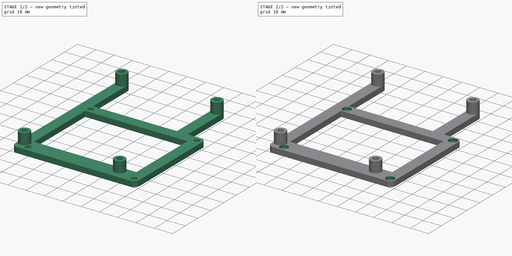
[diagram: build sequence overview — one tinted view per stage of 2, left to right]
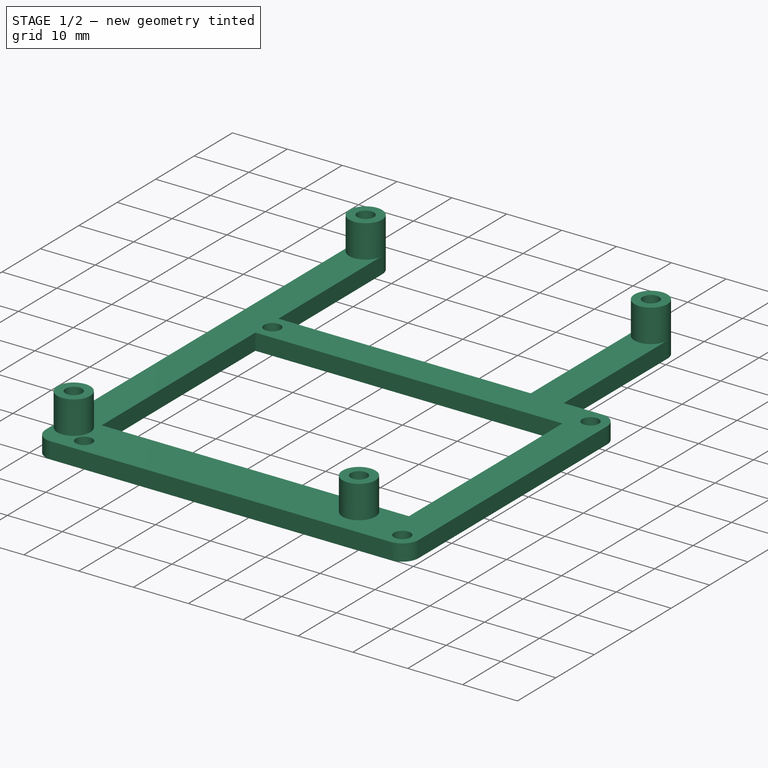
[diagram: stage 1 of 2 — iso view after this stage's code; geometry added in this stage tinted green]
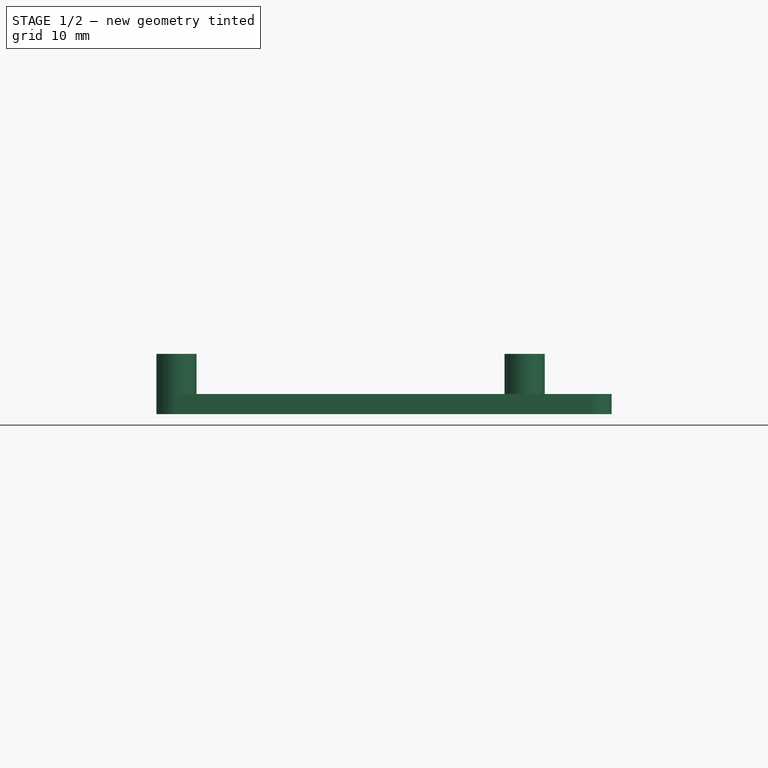
[diagram: stage 1 of 2 — front view after this stage's code; geometry added in this stage tinted green]
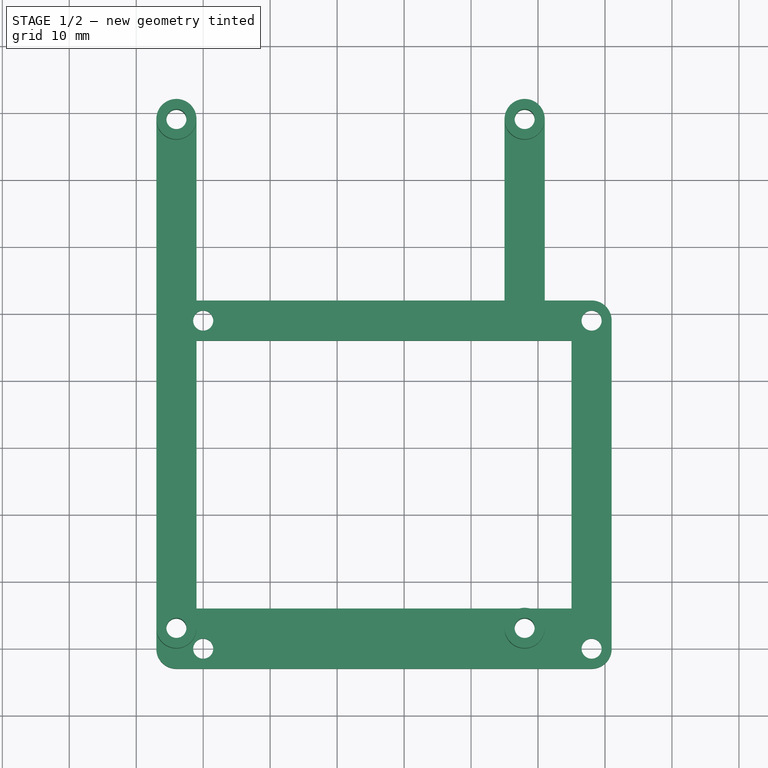
[diagram: stage 1 of 2 — top view after this stage's code; geometry added in this stage tinted green]
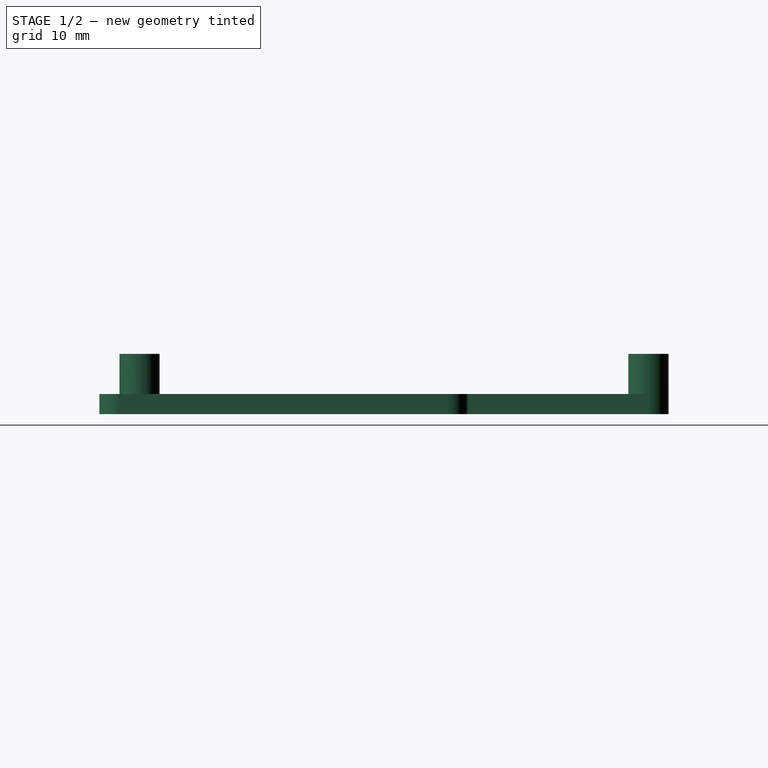
[diagram: stage 1 of 2 — right view after this stage's code; geometry added in this stage tinted green]
FCSTD DOCUMENT  (FreeCAD 0.20R)
Label: xu4_display_holder
License: All rights reserved
LicenseURL: http://en.wikipedia.org/wiki/All_rights_reserved
objects: Sketcher::SketchObject×3, PartDesign::Pad×2, PartDesign::Pocket×1, PartDesign::Body×1
note: 10 computed .brp shape members not serialized (recipe doc carries the construction recipe); baked Part::Feature solids carry a one-line shape summary decoded from their .brp

FEATURE [Sketcher::SketchObject] Sketch
  FullyConstrained = true
  MapMode = 5
  Support = -> [XY_Plane]
  sketch-geometry (41):
    g0: Circle CenterX=0 CenterY=0 CenterZ=0 NormalX=0 NormalY=0 NormalZ=1 AngleXU=0 Radius=1.5
    g1: LineSegment StartX=0 StartY=0 StartZ=0 EndX=58 EndY=0 EndZ=0
    g2: Circle CenterX=58 CenterY=0 CenterZ=0 NormalX=0 NormalY=0 NormalZ=1 AngleXU=0 Radius=1.5
    g3: LineSegment StartX=58 StartY=0 StartZ=0 EndX=58 EndY=49 EndZ=0
    g4: LineSegment StartX=58 StartY=49 StartZ=0 EndX=0 EndY=49 EndZ=0
    g5: Circle CenterX=0 CenterY=49 CenterZ=0 NormalX=0 NormalY=0 NormalZ=1 AngleXU=0 Radius=1.5
    g6: Circle CenterX=58 CenterY=49 CenterZ=0 NormalX=0 NormalY=0 NormalZ=1 AngleXU=0 Radius=1.5
    g7: Circle CenterX=-4 CenterY=3 CenterZ=0 NormalX=0 NormalY=0 NormalZ=1 AngleXU=0 Radius=1.5
    g8: Circle CenterX=48 CenterY=3 CenterZ=0 NormalX=0 NormalY=0 NormalZ=1 AngleXU=0 Radius=1.5
    g9: Circle CenterX=48 CenterY=79 CenterZ=0 NormalX=0 NormalY=0 NormalZ=1 AngleXU=0 Radius=1.5
    g10: Circle CenterX=-4 CenterY=79 CenterZ=0 NormalX=0 NormalY=0 NormalZ=1 AngleXU=0 Radius=1.5
    g11: LineSegment StartX=-4 StartY=79 StartZ=0 EndX=-4 EndY=3 EndZ=0
    g12: LineSegment StartX=-4 StartY=79 StartZ=0 EndX=48 EndY=79 EndZ=0
    g13: LineSegment StartX=48 StartY=79 StartZ=0 EndX=48 EndY=3 EndZ=0
    g14: LineSegment StartX=48 StartY=3 StartZ=0 EndX=-4 EndY=3 EndZ=0
    g15: LineSegment StartX=-4 StartY=3 StartZ=0 EndX=-4 EndY=0 EndZ=0
    g16: LineSegment StartX=-4 StartY=0 StartZ=0 EndX=0 EndY=0 EndZ=0
    g17: LineSegment StartX=58 StartY=-3 StartZ=0 EndX=-4 EndY=-3 EndZ=0
    g18: ArcOfCircle CenterX=58 CenterY=0 CenterZ=0 NormalX=0 NormalY=0 NormalZ=1 AngleXU=0 Radius=3 StartAngle=4.71239 EndAngle=6.28319
    g19: ArcOfCircle CenterX=-4 CenterY=0 CenterZ=0 NormalX=0 NormalY=0 NormalZ=1 AngleXU=0 Radius=3 StartAngle=3.14159 EndAngle=4.71239
    g20: LineSegment StartX=-7 StartY=4e-16 StartZ=0 EndX=-7 EndY=79 EndZ=0
    g21: ArcOfCircle CenterX=-4 CenterY=79 CenterZ=0 NormalX=0 NormalY=0 NormalZ=1 AngleXU=0 Radius=3 StartAngle=0 EndAngle=3.14159
    g22: ArcOfCircle CenterX=48 CenterY=79 CenterZ=0 NormalX=0 NormalY=0 NormalZ=1 AngleXU=0 Radius=3 StartAngle=0 EndAngle=3.14159
    g23: LineSegment StartX=61 StartY=-7e-16 StartZ=0 EndX=61 EndY=49 EndZ=0
    g24: ArcOfCircle CenterX=58 CenterY=49 CenterZ=0 NormalX=0 NormalY=0 NormalZ=1 AngleXU=0 Radius=3 StartAngle=1.1e-15 EndAngle=1.5708
    g25: LineSegment StartX=-1 StartY=79 StartZ=0 EndX=-1 EndY=52 EndZ=0
    g26: LineSegment StartX=-1 StartY=52 StartZ=0 EndX=45 EndY=52 EndZ=0
    g27: LineSegment StartX=45 StartY=52 StartZ=0 EndX=45 EndY=79 EndZ=0
    g28: LineSegment StartX=51 StartY=79 StartZ=0 EndX=51 EndY=52 EndZ=0
    g29: LineSegment StartX=51 StartY=52 StartZ=0 EndX=58 EndY=52 EndZ=0
    g30: LineSegment StartX=45 StartY=52 StartZ=0 EndX=51 EndY=52 EndZ=0
    g31: LineSegment StartX=-1 StartY=52 StartZ=0 EndX=-7 EndY=52 EndZ=0
    g32: LineSegment StartX=-1 StartY=46 StartZ=0 EndX=55 EndY=46 EndZ=0
    g33: LineSegment StartX=55 StartY=46 StartZ=0 EndX=55 EndY=6 EndZ=0
    g34: LineSegment StartX=55 StartY=6 StartZ=0 EndX=-1 EndY=6 EndZ=0
    g35: LineSegment StartX=-1 StartY=6 StartZ=0 EndX=-1 EndY=46 EndZ=0
    g36: LineSegment StartX=51 StartY=52 StartZ=0 EndX=51 EndY=49 EndZ=0
    g37: LineSegment StartX=51 StartY=49 StartZ=0 EndX=51 EndY=46 EndZ=0
    g38: LineSegment StartX=55 StartY=46 StartZ=0 EndX=58 EndY=46 EndZ=0
    g39: LineSegment StartX=-1 StartY=6 StartZ=0 EndX=-1 EndY=3 EndZ=0
    g40: LineSegment StartX=-1 StartY=46 StartZ=0 EndX=-4 EndY=46 EndZ=0
  constraints (113):
    c: Coincident(g0,g-1)
    c: Diameter(g0) = 3
    c: Coincident(g1,g0)
    c: PointOnObject(g1,g-1)
    c: Distance(g1) = 58
    c: Coincident(g2,g1)
    c: Equal(g2,g0)
    c: Coincident(g3,g2)
    c: Vertical(g3)
    c: Distance(g3) = 49
    c: Coincident(g4,g3)
    c: PointOnObject(g4,g-2)
    c: Horizontal(g4)
    c: Coincident(g5,g4)
    c: Coincident(g6,g3)
    c: Equal(g6,g5)
    c: Equal(g5,g0)
    c: Diameter(g7) = 3
    c: Equal(g7,g10)
    c: Equal(g10,g9)
    c: Equal(g9,g8)
    c: Coincident(g11,g10)
    c: Coincident(g11,g7)
    c: Vertical(g11)
    c: Coincident(g12,g10)
    c: Coincident(g12,g9)
    c: Horizontal(g12)
    c: Coincident(g13,g9)
    c: Coincident(g13,g8)
    c: Vertical(g13)
    c: Coincident(g14,g8)
    c: Coincident(g14,g7)
    c: Horizontal(g14)
    c: Distance(g14) = 52
    c: Distance(g11) = 76
    c: Coincident(g15,g7)
    c: PointOnObject(g15,g-1)
    c: Vertical(g15)
    c: Coincident(g16,g15)
    c: Coincident(g16,g0)
    c: Distance(g16) = 4
    c: Distance(g15) = 3
    c: PointOnObject(g17,g3)
    c: PointOnObject(g17,g11)
    c: Horizontal(g17)
    c: Coincident(g18,g2)
    c: Coincident(g18,g17)
    c: PointOnObject(g18,g-1)
    c: Radius(g18) = 3
    c: Coincident(g19,g15)
    c: Coincident(g19,g17)
    c: PointOnObject(g19,g-1)
    c: Coincident(g20,g19)
    c: Vertical(g20)
    c: PointOnObject(g20,g12)
    c: Coincident(g21,g10)
    c: Coincident(g21,g20)
    c: Coincident(g22,g9)
    c: PointOnObject(g22,g12)
    c: PointOnObject(g21,g12)
    c: PointOnObject(g22,g12)
    c: Coincident(g23,g18)
    c: Vertical(g23)
    c: PointOnObject(g23,g4)
    c: Coincident(g24,g6)
    c: Coincident(g24,g23)
    c: PointOnObject(g24,g3)
    c: Coincident(g25,g21)
    c: Vertical(g25)
    c: Coincident(g26,g25)
    c: Horizontal(g26)
    c: Coincident(g27,g26)
    c: Coincident(g27,g22)
    c: Vertical(g27)
    c: Coincident(g28,g22)
    c: Vertical(g28)
    c: Coincident(g29,g28)
    c: Coincident(g29,g24)
    c: Horizontal(g29)
    c: Coincident(g30,g26)
    c: Coincident(g30,g28)
    c: Horizontal(g30)
    c: Coincident(g31,g25)
    c: PointOnObject(g31,g20)
    c: Horizontal(g31)
    c: Equal(g31,g30)
    c: Coincident(g32,g33)
    c: Coincident(g33,g34)
    c: Coincident(g34,g35)
    c: Coincident(g35,g32)
    c: Horizontal(g32)
    c: Horizontal(g34)
    c: Vertical(g33)
    c: Vertical(g35)
    c: Coincident(g36,g28)
    c: PointOnObject(g36,g4)
    c: Vertical(g36)
    c: Coincident(g37,g36)
    c: PointOnObject(g37,g32)
    c: Vertical(g37)
    c: Coincident(g38,g32)
    c: PointOnObject(g38,g3)
    c: Coincident(g39,g34)
    c: PointOnObject(g39,g14)
    c: Vertical(g39)
    c: Coincident(g40,g32)
    c: PointOnObject(g40,g11)
    c: Horizontal(g40)
    c: Equal(g40,g39)
    c: Equal(g39,g38)
    c: Equal(g38,g37)
    c: Equal(g37,g36)
    c: Horizontal(g38)
FEATURE [PartDesign::Pad] Pad
  Direction = (0,0,1)
  Length = 3
  Length2 = 10
  Profile = -> Sketch
  ReferenceAxis = -> Sketch [N_Axis]
  Type = 0
FEATURE [Sketcher::SketchObject] Sketch001
  ExternalGeometry = -> [Pad]
  FullyConstrained = true
  MapMode = 5
  Placement = pos=(0,0,3) rot=(0,0,1;0rad)
  Support = -> [Pad]
  sketch-geometry (14):
    g0: Circle CenterX=-4 CenterY=79 CenterZ=0 NormalX=0 NormalY=0 NormalZ=1 AngleXU=0 Radius=1.5
    g1: LineSegment StartX=-4 StartY=79 StartZ=0 EndX=-5.5 EndY=79 EndZ=0
    g2: Circle CenterX=-4 CenterY=79 CenterZ=0 NormalX=0 NormalY=0 NormalZ=1 AngleXU=0 Radius=3
    g3: LineSegment StartX=48 StartY=79 StartZ=0 EndX=49.5 EndY=79 EndZ=0
    g4: Circle CenterX=48 CenterY=79 CenterZ=0 NormalX=0 NormalY=0 NormalZ=1 AngleXU=0 Radius=1.5
    g5: Circle CenterX=48 CenterY=79 CenterZ=0 NormalX=0 NormalY=0 NormalZ=1 AngleXU=0 Radius=3
    g6: LineSegment StartX=-4 StartY=3 StartZ=0 EndX=-2.5 EndY=3 EndZ=0
    g7: LineSegment StartX=48 StartY=3 StartZ=0 EndX=48 EndY=1.5 EndZ=0
    g8: LineSegment StartX=-4 StartY=3 StartZ=0 EndX=-7 EndY=3 EndZ=0
    g9: LineSegment StartX=48 StartY=3 StartZ=0 EndX=48 EndY=6 EndZ=0
    g10: Circle CenterX=-4 CenterY=3 CenterZ=0 NormalX=0 NormalY=0 NormalZ=1 AngleXU=0 Radius=1.5
    g11: Circle CenterX=48 CenterY=3 CenterZ=0 NormalX=0 NormalY=0 NormalZ=1 AngleXU=0 Radius=1.5
    g12: Circle CenterX=48 CenterY=3 CenterZ=0 NormalX=0 NormalY=0 NormalZ=1 AngleXU=0 Radius=3
    g13: Circle CenterX=-4 CenterY=3 CenterZ=0 NormalX=0 NormalY=0 NormalZ=1 AngleXU=0 Radius=3
  constraints (34):
    c: Coincident(g0,g-7)
    c: Coincident(g1,g0)
    c: PointOnObject(g1,g-3)
    c: Horizontal(g1)
    c: PointOnObject(g1,g0)
    c: Coincident(g2,g0)
    c: PointOnObject(g-7,g2)
    c: Coincident(g3,g-8)
    c: PointOnObject(g3,g-4)
    c: Horizontal(g3)
    c: Coincident(g4,g3)
    c: PointOnObject(g3,g4)
    c: Coincident(g5,g4)
    c: PointOnObject(g-8,g5)
    c: Coincident(g6,g-6)
    c: PointOnObject(g6,g-6)
    c: Horizontal(g6)
    c: Coincident(g7,g-5)
    c: PointOnObject(g7,g-5)
    c: Vertical(g7)
    c: Coincident(g8,g6)
    c: PointOnObject(g8,g-9)
    c: Horizontal(g8)
    c: Coincident(g9,g7)
    c: PointOnObject(g9,g-10)
    c: Vertical(g9)
    c: Coincident(g10,g6)
    c: PointOnObject(g6,g10)
    c: Coincident(g11,g7)
    c: PointOnObject(g7,g11)
    c: Coincident(g12,g11)
    c: PointOnObject(g9,g12)
    c: Coincident(g13,g10)
    c: PointOnObject(g8,g13)
FEATURE [PartDesign::Pad] Pad001
  BaseFeature = -> Pad
  Direction = (0,0,1)
  Length = 6
  Length2 = 10
  Profile = -> Sketch001
  ReferenceAxis = -> Sketch001 [N_Axis]
  Type = 0
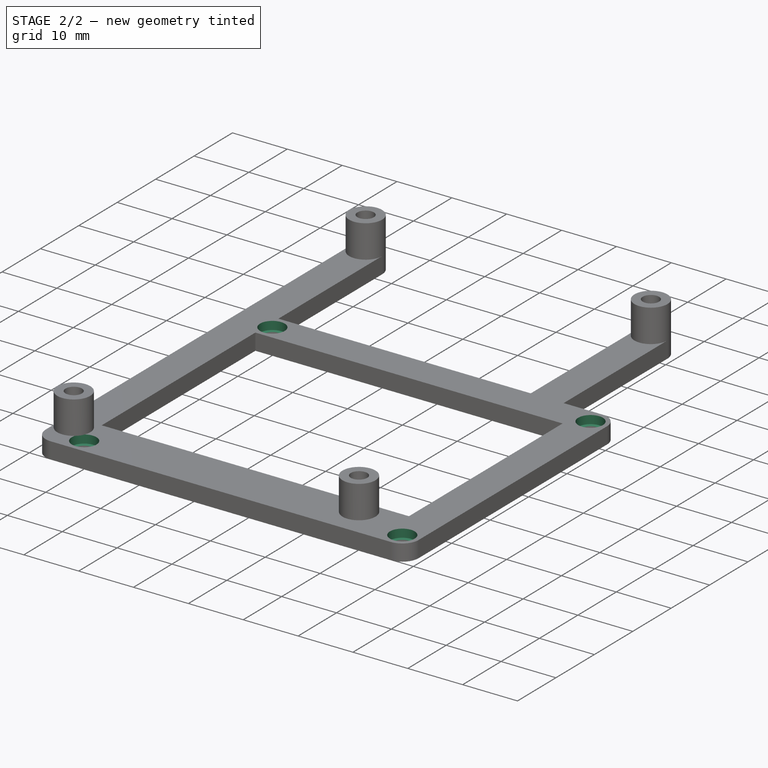
[diagram: stage 2 of 2 — iso view after this stage's code; geometry added in this stage tinted green]
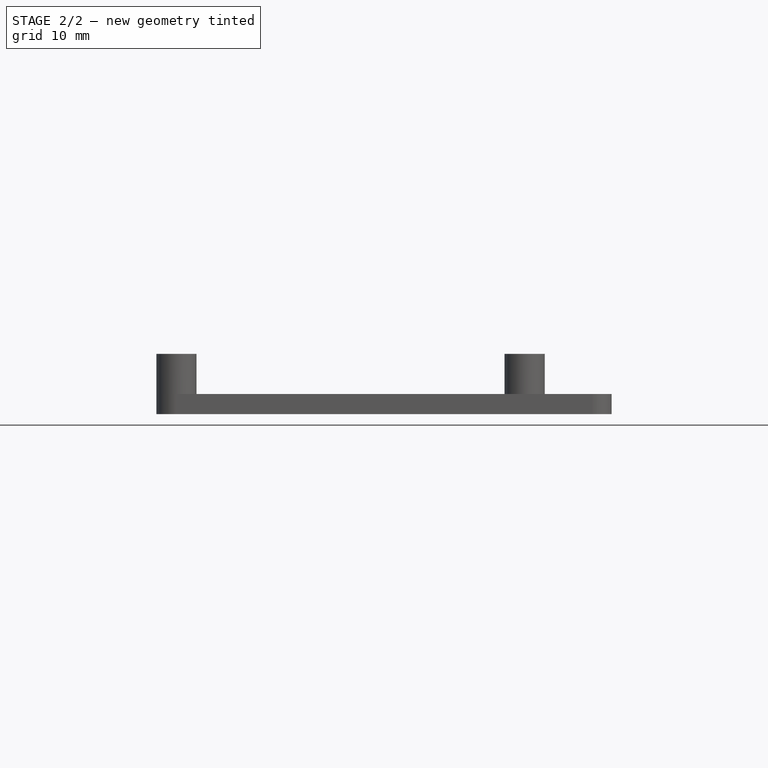
[diagram: stage 2 of 2 — front view after this stage's code; geometry added in this stage tinted green]
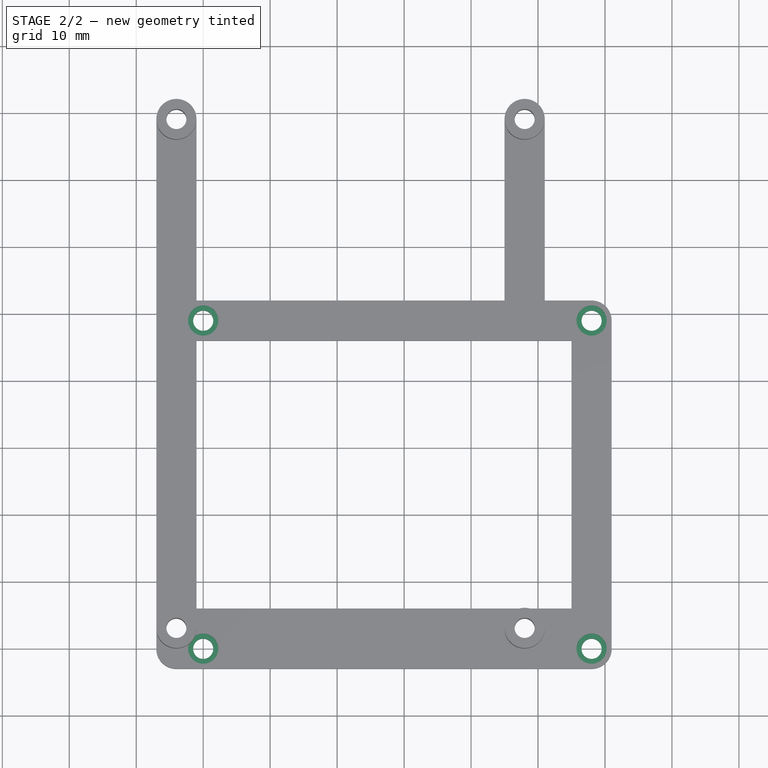
[diagram: stage 2 of 2 — top view after this stage's code; geometry added in this stage tinted green]
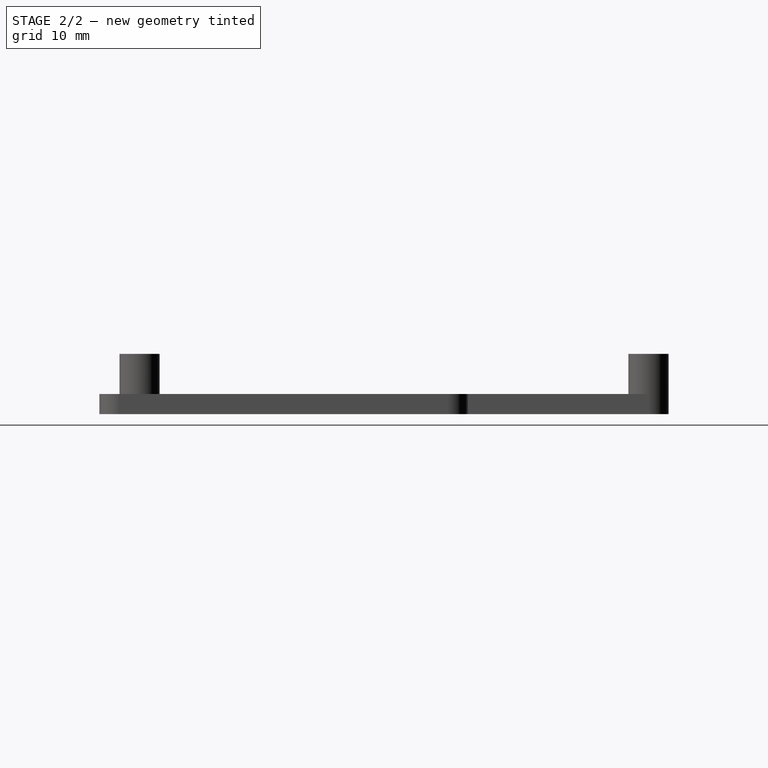
[diagram: stage 2 of 2 — right view after this stage's code; geometry added in this stage tinted green]
FEATURE [Sketcher::SketchObject] Sketch002
  ExternalGeometry = -> [Pad001]
  FullyConstrained = true
  MapMode = 5
  Placement = pos=(0,0,3) rot=(0,0,1;0rad)
  Support = -> [Pad001]
  sketch-geometry (4):
    g0: Circle CenterX=0 CenterY=0 CenterZ=0 NormalX=0 NormalY=0 NormalZ=1 AngleXU=0 Radius=2.25
    g1: Circle CenterX=58 CenterY=0 CenterZ=0 NormalX=0 NormalY=0 NormalZ=1 AngleXU=0 Radius=2.25
    g2: Circle CenterX=58 CenterY=49 CenterZ=0 NormalX=0 NormalY=0 NormalZ=1 AngleXU=0 Radius=2.25
    g3: Circle CenterX=0 CenterY=49 CenterZ=0 NormalX=0 NormalY=0 NormalZ=1 AngleXU=0 Radius=2.25
  constraints (8):
    c: Coincident(g1,g-5)
    c: Coincident(g2,g-4)
    c: Coincident(g3,g-3)
    c: Equal(g3,g2)
    c: Equal(g2,g1)
    c: Equal(g1,g0)
    c: Diameter(g0) = 4.5
    c: Coincident(g-6,g0)
FEATURE [PartDesign::Pocket] Pocket
  BaseFeature = -> Pad001
  Direction = (0,0,-1)
  Length = 1.5
  Length2 = 5
  Profile = -> Sketch002
  ReferenceAxis = -> Sketch002 [N_Axis]
  Type = 0
FEATURE [PartDesign::Body] Body
  Group = -> [Sketch,Pad,Sketch001,Pad001,Sketch002,Pocket]
  Origin = -> Origin
  Tip = -> Pocket
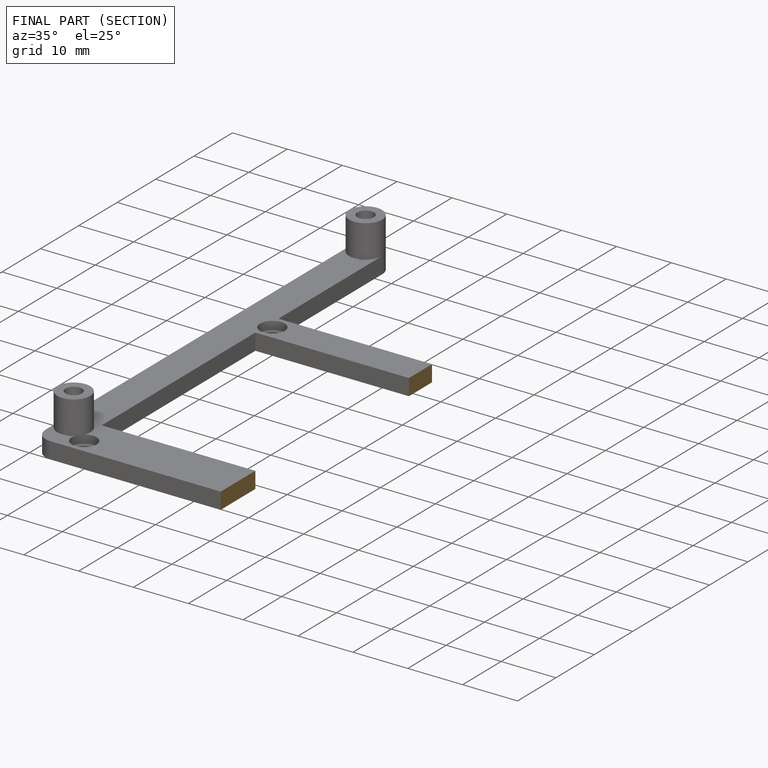
[diagram: finished part — half-section view (interior)]
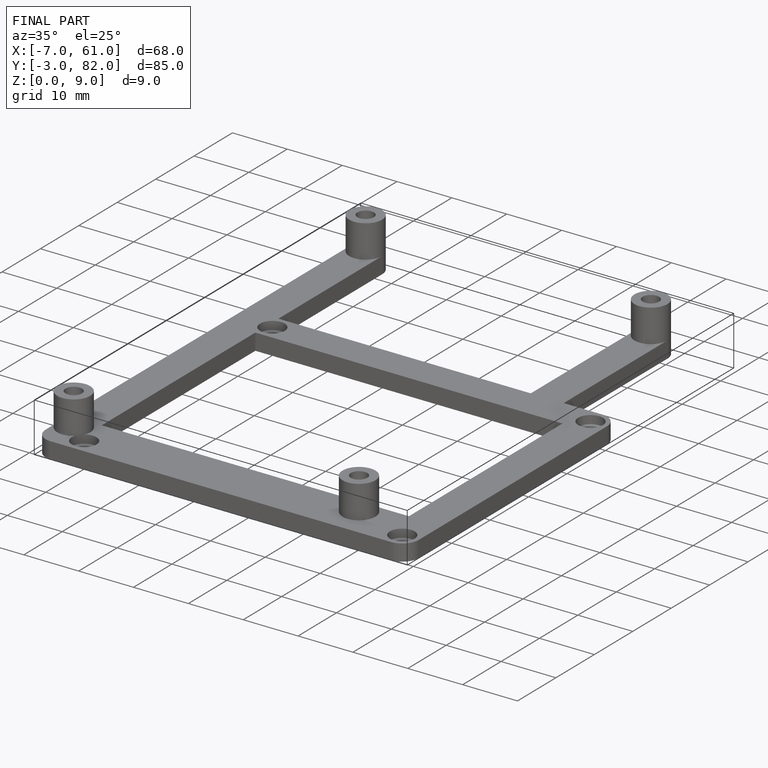
[diagram: finished part — iso view with bounding-box wireframe]
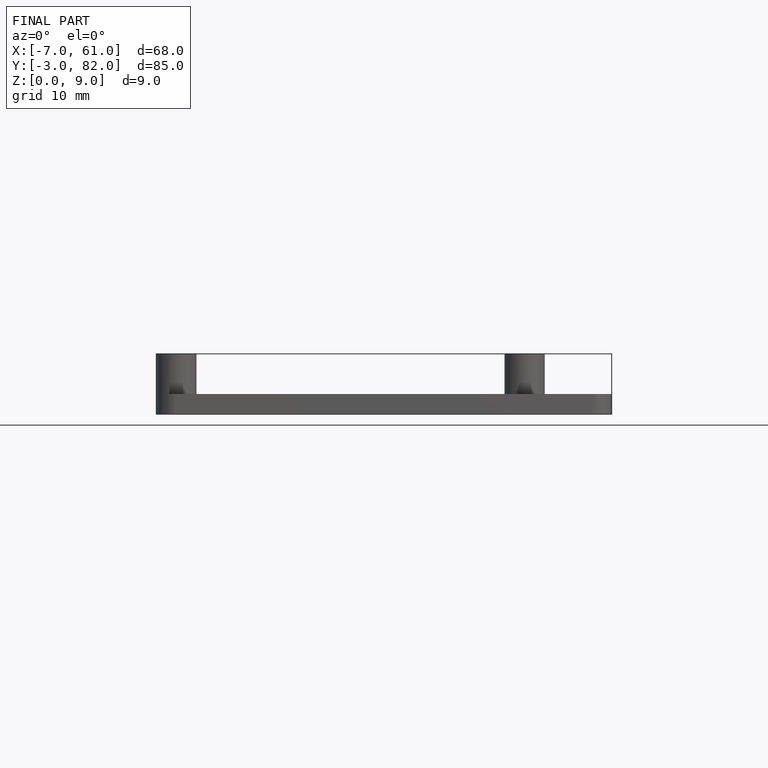
[diagram: finished part — front view with bounding-box wireframe]
